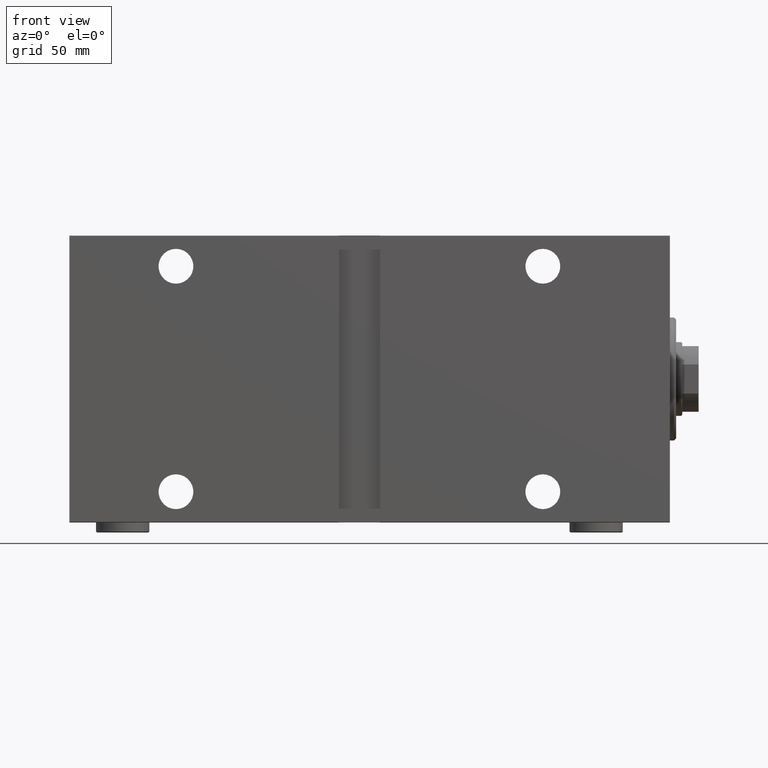
[diagram: clean part render]
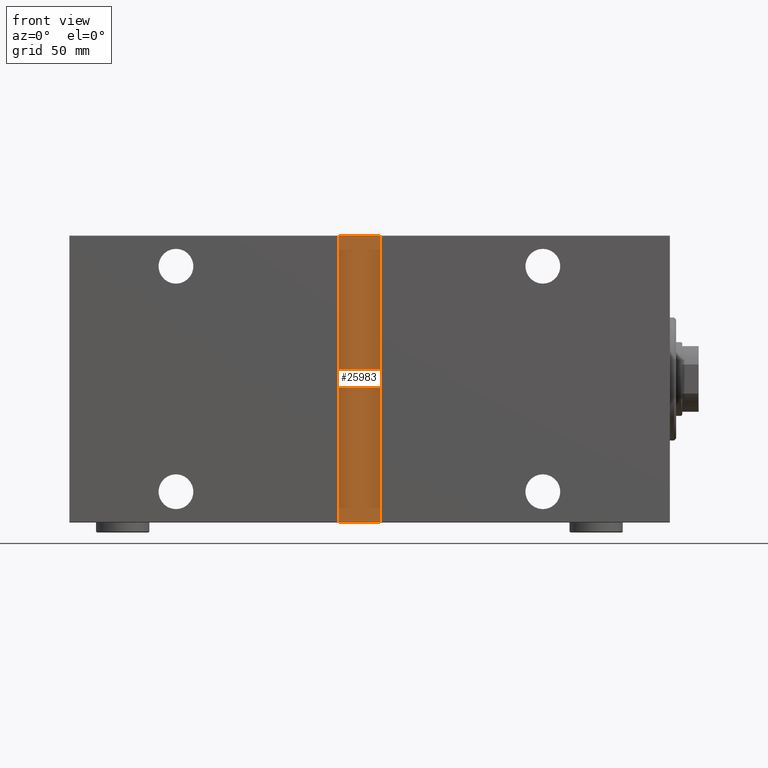
[diagram: same view with one face highlighted and labeled with its STEP entity id]
A machine part, front view. The second image highlights one B-rep face of the part: STEP entity #25983.
In plain terms, the highlighted planar face has unit normal (-0, 1, -0).
Its self-contained STEP definition (entity closure, byte-faithful):
#979 = DIRECTION ( 'NONE',  ( 0.000000000000000000, 9.912705577010325549E-17, -1.000000000000000000 ) ) ;
#1196 = CARTESIAN_POINT ( 'NONE',  ( 141.5000000000000284, 50.00000000000001421, -69.99999999999998579 ) ) ;
#1768 = CARTESIAN_POINT ( 'NONE',  ( 161.4999999999999716, 50.00000000000000000, 70.00000000000001421 ) ) ;
#7369 = EDGE_CURVE ( 'NONE', #22049, #25513, #8358, .T. ) ;
#7834 = DIRECTION ( 'NONE',  ( -1.000000000000000000, 0.000000000000000000, 0.000000000000000000 ) ) ;
#7932 = DIRECTION ( 'NONE',  ( 0.000000000000000000, -1.000000000000000000, -9.912705577010325549E-17 ) ) ;
#8358 = LINE ( 'NONE', #15296, #18251 ) ;
#8624 = AXIS2_PLACEMENT_3D ( 'NONE', #31717, #7932, #979 ) ;
#8676 = VERTEX_POINT ( 'NONE', #35558 ) ;
#8890 = ORIENTED_EDGE ( 'NONE', *, *, #7369, .T. ) ;
#11466 = ORIENTED_EDGE ( 'NONE', *, *, #23292, .T. ) ;
#12644 = ORIENTED_EDGE ( 'NONE', *, *, #16034, .T. ) ;
#14120 = LINE ( 'NONE', #27830, #16644 ) ;
#15296 = CARTESIAN_POINT ( 'NONE',  ( 161.4999999999999716, 50.00000000000000000, 70.00000000000001421 ) ) ;
#16034 = EDGE_CURVE ( 'NONE', #25513, #8676, #22476, .T. ) ;
#16039 = CARTESIAN_POINT ( 'NONE',  ( 141.5000000000000284, 50.00000000000000000, 70.00000000000001421 ) ) ;
#16644 = VECTOR ( 'NONE', #7834, 1000.000000000000000 ) ;
#18085 = VERTEX_POINT ( 'NONE', #1196 ) ;
#18251 = VECTOR ( 'NONE', #39549, 1000.000000000000000 ) ;
#20026 = VECTOR ( 'NONE', #43420, 1000.000000000000000 ) ;
#22049 = VERTEX_POINT ( 'NONE', #16039 ) ;
#22476 = LINE ( 'NONE', #36612, #32145 ) ;
#23292 = EDGE_CURVE ( 'NONE', #18085, #22049, #39618, .T. ) ;
#25513 = VERTEX_POINT ( 'NONE', #1768 ) ;
#25983 = ADVANCED_FACE ( 'NONE', ( #27706 ), #41592, .F. ) ;
#27706 = FACE_OUTER_BOUND ( 'NONE', #27826, .T. ) ;
#27826 = EDGE_LOOP ( 'NONE', ( #11466, #8890, #12644, #35308 ) ) ;
#27830 = CARTESIAN_POINT ( 'NONE',  ( 161.4999999999999716, 50.00000000000001421, -69.99999999999998579 ) ) ;
#29746 = CARTESIAN_POINT ( 'NONE',  ( 141.5000000000000284, 50.00000000000001421, -69.99999999999998579 ) ) ;
#31717 = CARTESIAN_POINT ( 'NONE',  ( 0.000000000000000000, 50.00000000000000711, 4.821179530636841162E-15 ) ) ;
#32145 = VECTOR ( 'NONE', #36172, 1000.000000000000000 ) ;
#34844 = EDGE_CURVE ( 'NONE', #8676, #18085, #14120, .T. ) ;
#35308 = ORIENTED_EDGE ( 'NONE', *, *, #34844, .T. ) ;
#35558 = CARTESIAN_POINT ( 'NONE',  ( 161.4999999999999716, 50.00000000000002842, -70.00000000000001421 ) ) ;
#36172 = DIRECTION ( 'NONE',  ( -0.000000000000000000, 9.912705577010325549E-17, -1.000000000000000000 ) ) ;
#36612 = CARTESIAN_POINT ( 'NONE',  ( 161.4999999999999716, 50.00000000000001421, -69.99999999999998579 ) ) ;
#39549 = DIRECTION ( 'NONE',  ( 1.000000000000000000, -0.000000000000000000, -0.000000000000000000 ) ) ;
#39618 = LINE ( 'NONE', #29746, #20026 ) ;
#41592 = PLANE ( 'NONE',  #8624 ) ;
#43420 = DIRECTION ( 'NONE',  ( 0.000000000000000000, -9.912705577010325549E-17, 1.000000000000000000 ) ) ;